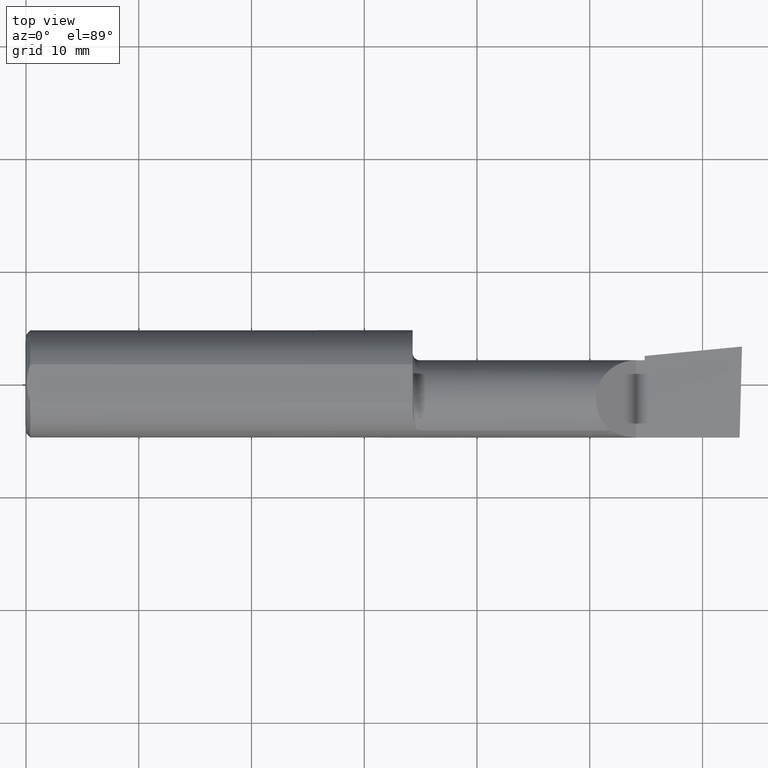
[diagram: clean part render]
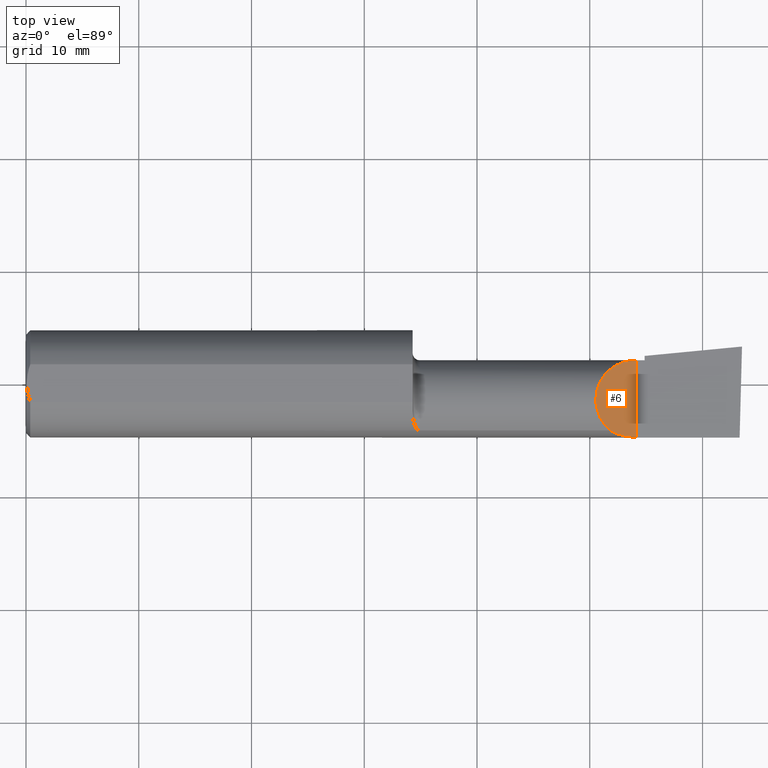
[diagram: same view with one face highlighted and labeled with its STEP entity id]
A machine part, top view. The second image highlights one B-rep face of the part: STEP entity #6.
In plain terms, the highlighted planar face has unit normal (-0.7071, 0, -0.7071).
Its self-contained STEP definition (entity closure, byte-faithful):
#6 = ADVANCED_FACE ( 'NONE', ( #515 ), #85, .F. ) ;
#85 = PLANE ( 'NONE',  #598 ) ;
#116 = EDGE_CURVE ( 'NONE', #395, #318, #530, .T. ) ;
#118 = DIRECTION ( 'NONE',  ( -0.7071067811865511255, 0.000000000000000000, 0.7071067811865437980 ) ) ;
#127 = ORIENTED_EDGE ( 'NONE', *, *, #116, .F. ) ;
#139 = CARTESIAN_POINT ( 'NONE',  ( 2.066758987970638284, -0.1792580844883770730, 0.06324101202936138755 ) ) ;
#155 = VECTOR ( 'NONE', #174, 39.37007874015748143 ) ;
#166 = CARTESIAN_POINT ( 'NONE',  ( 1.921229036482944075, -0.06260079402492431389, 0.2087709635170537925 ) ) ;
#174 = DIRECTION ( 'NONE',  ( -0.000000000000000000, 1.000000000000000000, -0.000000000000000000 ) ) ;
#178 = CARTESIAN_POINT ( 'NONE',  ( 1.975085956200449022, 0.08264999999999997349, 0.1549140437995493169 ) ) ;
#197 = CARTESIAN_POINT ( 'NONE',  ( 2.129999999999999893, -0.1873499999999999888, 1.065442715258197396E-16 ) ) ;
#203 = CARTESIAN_POINT ( 'NONE',  ( 2.038695632261437130, -0.1635956445993029529, 0.09130436773856188959 ) ) ;
#215 = LINE ( 'NONE', #369, #155 ) ;
#223 = CARTESIAN_POINT ( 'NONE',  ( 2.129999999999999893, -0.1873499999999999888, 1.065442715258197396E-16 ) ) ;
#290 = CARTESIAN_POINT ( 'NONE',  ( 2.038695632261437130, -0.1635956445993029529, 0.09130436773856188959 ) ) ;
#296 = EDGE_LOOP ( 'NONE', ( #439, #127, #494 ) ) ;
#318 = VERTEX_POINT ( 'NONE', #203 ) ;
#329 = EDGE_CURVE ( 'NONE', #318, #527, #487, .T. ) ;
#359 = DIRECTION ( 'NONE',  ( -0.7071067811865439090, 0.000000000000000000, -0.7071067811865512365 ) ) ;
#369 = CARTESIAN_POINT ( 'NONE',  ( 2.129999999999999893, -0.2500000000000000555, 1.065442715258197396E-16 ) ) ;
#383 = CARTESIAN_POINT ( 'NONE',  ( 2.097861799102314961, -0.1873500000000000165, 0.03213820089768509858 ) ) ;
#392 = EDGE_CURVE ( 'NONE', #395, #527, #215, .T. ) ;
#395 = VERTEX_POINT ( 'NONE', #223 ) ;
#413 = CARTESIAN_POINT ( 'NONE',  ( 2.038695632261437130, -0.1635956445993029529, 0.09130436773856188959 ) ) ;
#423 = CARTESIAN_POINT ( 'NONE',  ( 2.129999999999999893, -0.2500000000000000555, 1.065442715258197396E-16 ) ) ;
#439 = ORIENTED_EDGE ( 'NONE', *, *, #329, .F. ) ;
#487 =( BOUNDED_CURVE ( )  B_SPLINE_CURVE ( 3, ( #413, #166, #178, #602 ),
 .UNSPECIFIED., .F., .F. ) 
 B_SPLINE_CURVE_WITH_KNOTS ( ( 4, 4 ),
 ( 5.422530673488458852, 7.853981633974482790 ),
 .UNSPECIFIED. ) 
 CURVE ( )  GEOMETRIC_REPRESENTATION_ITEM ( )  RATIONAL_B_SPLINE_CURVE ( ( 1.000000000000000000, 0.5651045289226863666, 0.5651045289226863666, 1.000000000000000000 ) ) 
 REPRESENTATION_ITEM ( '' )  );
#494 = ORIENTED_EDGE ( 'NONE', *, *, #392, .T. ) ;
#515 = FACE_OUTER_BOUND ( 'NONE', #296, .T. ) ;
#527 = VERTEX_POINT ( 'NONE', #616 ) ;
#530 =( BOUNDED_CURVE ( )  B_SPLINE_CURVE ( 3, ( #197, #383, #139, #290 ),
 .UNSPECIFIED., .F., .T. ) 
 B_SPLINE_CURVE_WITH_KNOTS ( ( 4, 4 ),
 ( 4.712388980384689674, 5.221437360734125122 ),
 .UNSPECIFIED. ) 
 CURVE ( )  GEOMETRIC_REPRESENTATION_ITEM ( )  RATIONAL_B_SPLINE_CURVE ( ( 1.000000000000000000, 0.9785221379938656705, 0.9785221379938656705, 1.000000000000000000 ) ) 
 REPRESENTATION_ITEM ( '' )  );
#598 = AXIS2_PLACEMENT_3D ( 'NONE', #423, #359, #118 ) ;
#602 = CARTESIAN_POINT ( 'NONE',  ( 2.129999999999999893, 0.08264999999999983471, 1.065442715258197396E-16 ) ) ;
#616 = CARTESIAN_POINT ( 'NONE',  ( 2.129999999999999893, 0.08264999999999983471, 1.065442715258197396E-16 ) ) ;